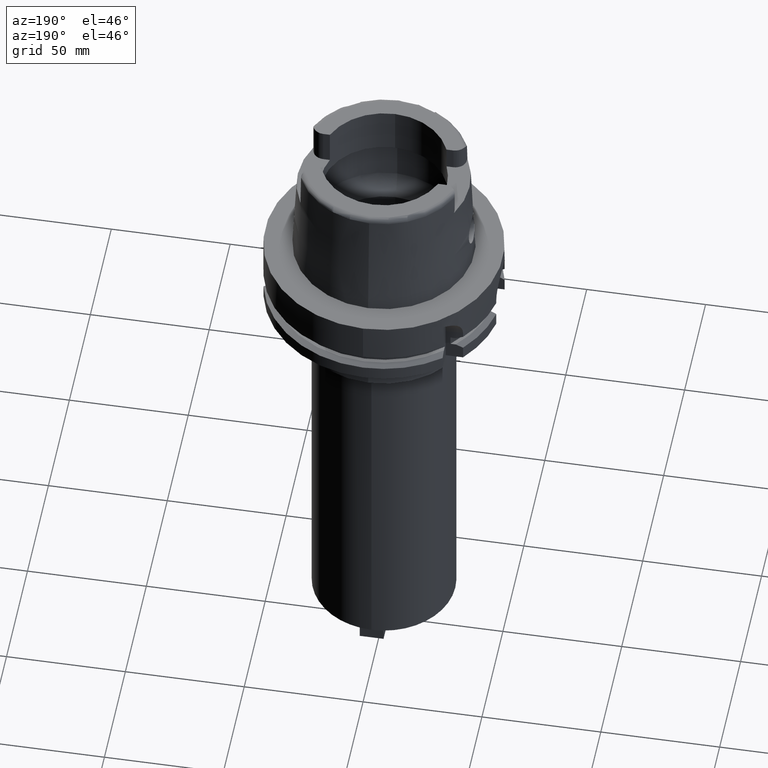
[diagram: clean part render]
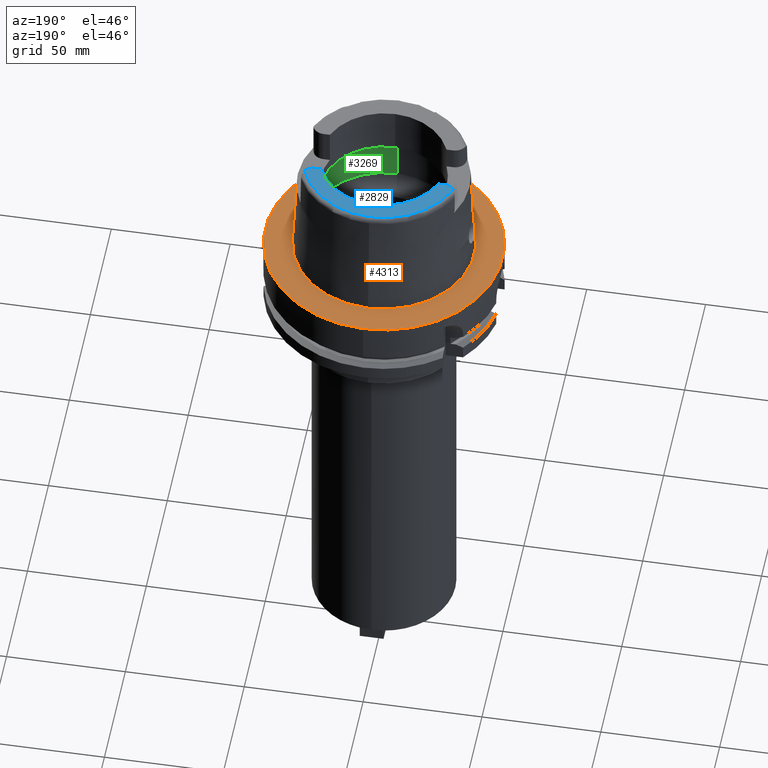
[diagram: same view with three faces highlighted in distinct colors, each labeled with its STEP entity id]
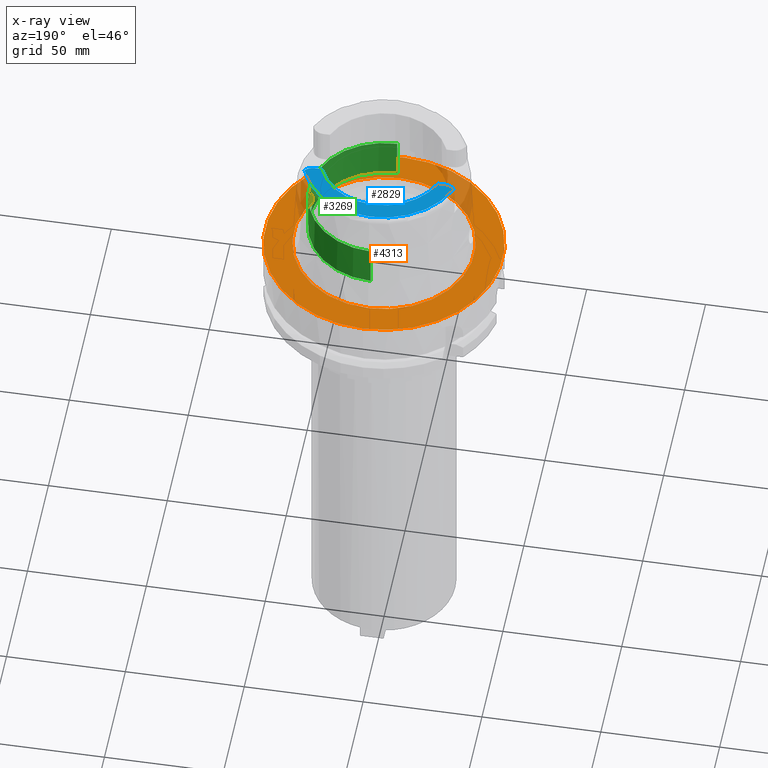
[diagram: x-ray of the same camera — body ghosted, the three highlighted faces saturated]
A machine part, auxiliary view with three faces highlighted in distinct colors.
The next image is the same camera in x-ray (body ghosted, the three faces saturated) — at least one of them is partly hidden behind the body in this view.
Their STEP definitions:

[orange] entity #4313 — the highlighted planar face has unit normal (0, 0, 1).
#2041=CARTESIAN_POINT('',(0.E0,0.E0,4.831690603169E-13));
#2042=DIRECTION('',(0.E0,0.E0,-1.E0));
#2043=DIRECTION('',(0.E0,-1.E0,0.E0));
#2044=AXIS2_PLACEMENT_3D('',#2041,#2042,#2043);
#2049=CARTESIAN_POINT('',(0.E0,0.E0,4.831690603169E-13));
#2050=DIRECTION('',(0.E0,0.E0,-1.E0));
#2051=DIRECTION('',(0.E0,1.E0,0.E0));
#2052=AXIS2_PLACEMENT_3D('',#2049,#2050,#2051);
#2057=CARTESIAN_POINT('',(0.E0,0.E0,1.023181539495E-12));
#2058=DIRECTION('',(0.E0,0.E0,1.E0));
#2059=DIRECTION('',(0.E0,-1.E0,0.E0));
#2060=AXIS2_PLACEMENT_3D('',#2057,#2058,#2059);
#2065=CARTESIAN_POINT('',(0.E0,0.E0,1.023181539495E-12));
#2066=DIRECTION('',(0.E0,0.E0,1.E0));
#2067=DIRECTION('',(0.E0,1.E0,0.E0));
#2068=AXIS2_PLACEMENT_3D('',#2065,#2066,#2067);
#2502=CARTESIAN_POINT('',(0.E0,-3.800001658252E1,6.039613253961E-13));
#2503=VERTEX_POINT('',#2502);
#2504=CARTESIAN_POINT('',(0.E0,3.800001658252E1,1.023181539495E-12));
#2505=VERTEX_POINT('',#2504);
#2771=CARTESIAN_POINT('',(0.E0,5.E1,3.031649005910E-13));
#2772=VERTEX_POINT('',#2771);
#2773=CARTESIAN_POINT('',(0.E0,-5.E1,4.831690603169E-13));
#2774=VERTEX_POINT('',#2773);
#4300=CARTESIAN_POINT('',(0.E0,0.E0,0.E0));
#4301=DIRECTION('',(0.E0,0.E0,1.E0));
#4302=DIRECTION('',(0.E0,1.E0,0.E0));
#4303=AXIS2_PLACEMENT_3D('',#4300,#4301,#4302);
#4304=PLANE('',#4303);
#4305=ORIENTED_EDGE('',*,*,#4065,.T.);
#4306=ORIENTED_EDGE('',*,*,#4174,.T.);
#4307=EDGE_LOOP('',(#4305,#4306));
#4308=FACE_OUTER_BOUND('',#4307,.F.);
#4309=ORIENTED_EDGE('',*,*,#3025,.T.);
#4310=ORIENTED_EDGE('',*,*,#2996,.T.);
#4311=EDGE_LOOP('',(#4309,#4310));
#4312=FACE_BOUND('',#4311,.F.);
#2045=CIRCLE('',#2044,5.E1);
#2053=CIRCLE('',#2052,5.E1);
#2061=CIRCLE('',#2060,3.800001658252E1);
#2069=CIRCLE('',#2068,3.800001658252E1);
#2996=EDGE_CURVE('',#2505,#2503,#2069,.T.);
#3025=EDGE_CURVE('',#2503,#2505,#2061,.T.);
#4065=EDGE_CURVE('',#2774,#2772,#2045,.T.);
#4174=EDGE_CURVE('',#2772,#2774,#2053,.T.);
#4313=ADVANCED_FACE('',(#4308,#4312),#4304,.T.);

[blue] entity #2829 — the highlighted planar face has unit normal (0, 0, 1).
#17=CARTESIAN_POINT('',(-2.737E1,1.489E1,5.E1));
#18=DIRECTION('',(0.E0,0.E0,-1.E0));
#19=DIRECTION('',(0.E0,-1.E0,0.E0));
#20=AXIS2_PLACEMENT_3D('',#17,#18,#19);
#26=CARTESIAN_POINT('',(0.E0,0.E0,5.E1));
#27=DIRECTION('',(0.E0,0.E0,-1.E0));
#28=DIRECTION('',(-9.332215253018E-1,3.593015233942E-1,0.E0));
#29=AXIS2_PLACEMENT_3D('',#26,#27,#28);
#34=CARTESIAN_POINT('',(2.737E1,1.489E1,5.E1));
#35=DIRECTION('',(0.E0,0.E0,-1.E0));
#36=DIRECTION('',(8.163632566569E-1,-5.775387720150E-1,0.E0));
#37=AXIS2_PLACEMENT_3D('',#34,#35,#36);
#42=CARTESIAN_POINT('',(0.E0,0.E0,5.E1));
#43=DIRECTION('',(0.E0,0.E0,1.E0));
#44=DIRECTION('',(9.259134021805E-1,3.777358490566E-1,0.E0));
#45=AXIS2_PLACEMENT_3D('',#42,#43,#44);
#50=CARTESIAN_POINT('',(0.E0,0.E0,5.E1));
#51=DIRECTION('',(0.E0,0.E0,1.E0));
#52=DIRECTION('',(0.E0,1.E0,0.E0));
#53=AXIS2_PLACEMENT_3D('',#50,#51,#52);
#72=DIRECTION('',(1.E0,1.429464217237E-13,0.E0));
#73=VECTOR('',#72,2.833294842218E0);
#74=CARTESIAN_POINT('',(-2.737E1,1.001E1,5.E1));
#75=LINE('',#74,#73);
#2353=DIRECTION('',(1.E0,-1.423194637337E-13,0.E0));
#2354=VECTOR('',#2353,2.833294842218E0);
#2355=CARTESIAN_POINT('',(2.453670515778E1,1.001E1,5.E1));
#2356=LINE('',#2355,#2354);
#2440=CARTESIAN_POINT('',(-2.737E1,1.001E1,5.E1));
#2441=CARTESIAN_POINT('',(-3.135385269249E1,1.207161079257E1,5.E1));
#2442=VERTEX_POINT('',#2440);
#2443=VERTEX_POINT('',#2441);
#2444=CARTESIAN_POINT('',(3.135385269249E1,1.207161079257E1,5.E1));
#2445=VERTEX_POINT('',#2444);
#2446=CARTESIAN_POINT('',(2.737E1,1.001E1,5.E1));
#2447=VERTEX_POINT('',#2446);
#2448=CARTESIAN_POINT('',(2.453670515778E1,1.001E1,5.E1));
#2449=VERTEX_POINT('',#2448);
#2450=CARTESIAN_POINT('',(0.E0,2.65E1,5.E1));
#2451=VERTEX_POINT('',#2450);
#2452=CARTESIAN_POINT('',(-2.453670515778E1,1.001E1,5.E1));
#2453=VERTEX_POINT('',#2452);
#2808=CARTESIAN_POINT('',(0.E0,0.E0,5.E1));
#2809=DIRECTION('',(0.E0,0.E0,1.E0));
#2810=DIRECTION('',(0.E0,1.E0,0.E0));
#2811=AXIS2_PLACEMENT_3D('',#2808,#2809,#2810);
#2812=PLANE('',#2811);
#2814=ORIENTED_EDGE('',*,*,#2813,.T.);
#2816=ORIENTED_EDGE('',*,*,#2815,.T.);
#2818=ORIENTED_EDGE('',*,*,#2817,.T.);
#2820=ORIENTED_EDGE('',*,*,#2819,.F.);
#2822=ORIENTED_EDGE('',*,*,#2821,.T.);
#2824=ORIENTED_EDGE('',*,*,#2823,.T.);
#2826=ORIENTED_EDGE('',*,*,#2825,.F.);
#2827=EDGE_LOOP('',(#2814,#2816,#2818,#2820,#2822,#2824,#2826));
#2828=FACE_OUTER_BOUND('',#2827,.F.);
#21=CIRCLE('',#20,4.88E0);
#30=CIRCLE('',#29,3.359743838136E1);
#38=CIRCLE('',#37,4.88E0);
#46=CIRCLE('',#45,2.65E1);
#54=CIRCLE('',#53,2.65E1);
#2813=EDGE_CURVE('',#2442,#2443,#21,.T.);
#2815=EDGE_CURVE('',#2443,#2445,#30,.T.);
#2817=EDGE_CURVE('',#2445,#2447,#38,.T.);
#2819=EDGE_CURVE('',#2449,#2447,#2356,.T.);
#2821=EDGE_CURVE('',#2449,#2451,#46,.T.);
#2823=EDGE_CURVE('',#2451,#2453,#54,.T.);
#2825=EDGE_CURVE('',#2442,#2453,#75,.T.);
#2829=ADVANCED_FACE('',(#2828),#2812,.T.);

[green] entity #3269 — the highlighted cylindrical surface (partial cylindrical patch) has radius 31.5 mm, axis along (0, 0, 1).
#534=CARTESIAN_POINT('',(0.E0,0.E0,2.711662432703E1));
#535=DIRECTION('',(0.E0,0.E0,1.E0));
#536=DIRECTION('',(0.E0,-1.E0,0.E0));
#537=AXIS2_PLACEMENT_3D('',#534,#535,#536);
#582=DIRECTION('',(0.E0,5.000414258470E-14,1.E0));
#583=VECTOR('',#582,1.762E1);
#584=CARTESIAN_POINT('',(0.E0,-3.15E1,9.496624327026E0));
#585=LINE('',#584,#583);
#682=CARTESIAN_POINT('',(0.E0,0.E0,9.496624327026E0));
#683=DIRECTION('',(0.E0,0.E0,-1.E0));
#684=DIRECTION('',(9.971171061384E-1,-7.587803796965E-2,0.E0));
#685=AXIS2_PLACEMENT_3D('',#682,#683,#684);
#706=CARTESIAN_POINT('',(0.E0,0.E0,9.496624327026E0));
#707=DIRECTION('',(0.E0,0.E0,-1.E0));
#708=DIRECTION('',(0.E0,1.E0,0.E0));
#709=AXIS2_PLACEMENT_3D('',#706,#707,#708);
#731=CARTESIAN_POINT('',(3.140918884336E1,-2.390158196044E0,9.496624327026E0));
#732=CARTESIAN_POINT('',(3.136994813364E1,-2.905822332357E0,9.720581210047E0));
#733=CARTESIAN_POINT('',(3.127457905672E1,-3.833750490583E0,1.028801637318E1));
#734=CARTESIAN_POINT('',(3.110936834371E1,-4.977047791145E0,1.151377122301E1));
#735=CARTESIAN_POINT('',(3.097607711511E1,-5.729099832596E0,1.298184817398E1));
#736=CARTESIAN_POINT('',(3.091126142545E1,-6.061189444425E0,1.459712981848E1));
#737=CARTESIAN_POINT('',(3.093402224896E1,-5.946723392598E0,1.623980758094E1));
#738=CARTESIAN_POINT('',(3.103820285493E1,-5.392168183179E0,1.780058899295E1));
#739=CARTESIAN_POINT('',(3.119433825248E1,-4.427130194291E0,1.916132218788E1));
#740=CARTESIAN_POINT('',(3.135439655152E1,-3.136858799710E0,2.020349005972E1));
#741=CARTESIAN_POINT('',(3.147165624241E1,-1.614858231795E0,2.085381037818E1));
#742=CARTESIAN_POINT('',(3.15E1,-5.517545258805E-1,2.1E1));
#743=CARTESIAN_POINT('',(3.15E1,0.E0,2.1E1));
#748=CARTESIAN_POINT('',(3.15E1,0.E0,2.1E1));
#749=CARTESIAN_POINT('',(3.15E1,5.556466192320E-1,2.1E1));
#750=CARTESIAN_POINT('',(3.147125579866E1,1.625009170397E0,2.085177074407E1));
#751=CARTESIAN_POINT('',(3.135290495454E1,3.152112798037E0,2.019488345507E1));
#752=CARTESIAN_POINT('',(3.119215802335E1,4.442238319011E0,1.914560258892E1));
#753=CARTESIAN_POINT('',(3.103625200138E1,5.403105293089E0,1.777954630171E1));
#754=CARTESIAN_POINT('',(3.093312144149E1,5.951277547158E0,1.621713017368E1));
#755=CARTESIAN_POINT('',(3.091160407577E1,6.059484372707E0,1.457613905793E1));
#756=CARTESIAN_POINT('',(3.097722916938E1,5.722986961273E0,1.296572140988E1));
#757=CARTESIAN_POINT('',(3.111058680173E1,4.969405675145E0,1.150375305321E1));
#758=CARTESIAN_POINT('',(3.127519646746E1,3.828318161343E0,1.028431487239E1));
#759=CARTESIAN_POINT('',(3.137011574467E1,2.903619747445E0,9.719624610554E0));
#760=CARTESIAN_POINT('',(3.140918884336E1,2.390158196044E0,9.496624327026E0));
#765=DIRECTION('',(0.E0,-5.000414258470E-14,1.E0));
#766=VECTOR('',#765,1.762E1);
#767=CARTESIAN_POINT('',(0.E0,3.15E1,9.496624327026E0));
#768=LINE('',#767,#766);
#2526=CARTESIAN_POINT('',(0.E0,3.15E1,2.711662432703E1));
#2527=VERTEX_POINT('',#2526);
#2528=CARTESIAN_POINT('',(0.E0,-3.15E1,2.711662432703E1));
#2529=VERTEX_POINT('',#2528);
#2532=CARTESIAN_POINT('',(0.E0,-3.15E1,9.496624327026E0));
#2533=VERTEX_POINT('',#2532);
#2534=CARTESIAN_POINT('',(0.E0,3.15E1,9.496624327026E0));
#2535=VERTEX_POINT('',#2534);
#2540=VERTEX_POINT('',#731);
#2541=VERTEX_POINT('',#743);
#2543=VERTEX_POINT('',#760);
#3254=CARTESIAN_POINT('',(0.E0,0.E0,-2.314E2));
#3255=DIRECTION('',(0.E0,0.E0,1.E0));
#3256=DIRECTION('',(0.E0,1.E0,0.E0));
#3257=AXIS2_PLACEMENT_3D('',#3254,#3255,#3256);
#3258=CYLINDRICAL_SURFACE('',#3257,3.15E1);
#3259=ORIENTED_EDGE('',*,*,#3243,.T.);
#3261=ORIENTED_EDGE('',*,*,#3260,.T.);
#3262=ORIENTED_EDGE('',*,*,#3231,.F.);
#3263=ORIENTED_EDGE('',*,*,#3161,.T.);
#3264=ORIENTED_EDGE('',*,*,#3131,.F.);
#3265=ORIENTED_EDGE('',*,*,#3158,.F.);
#3266=ORIENTED_EDGE('',*,*,#3225,.F.);
#3267=EDGE_LOOP('',(#3259,#3261,#3262,#3263,#3264,#3265,#3266));
#3268=FACE_OUTER_BOUND('',#3267,.F.);
#538=CIRCLE('',#537,3.15E1);
#686=CIRCLE('',#685,3.15E1);
#710=CIRCLE('',#709,3.15E1);
#744=B_SPLINE_CURVE_WITH_KNOTS('',3,(#731,#732,#733,#734,#735,#736,#737,#738,
#739,#740,#741,#742,#743),.UNSPECIFIED.,.F.,.F.,(4,1,1,1,1,1,1,1,1,1,4),(0.E0,
1.E-1,2.E-1,3.E-1,4.E-1,5.E-1,6.E-1,7.E-1,8.E-1,9.E-1,1.E0),.UNSPECIFIED.);
#761=B_SPLINE_CURVE_WITH_KNOTS('',3,(#748,#749,#750,#751,#752,#753,#754,#755,
#756,#757,#758,#759,#760),.UNSPECIFIED.,.F.,.F.,(4,1,1,1,1,1,1,1,1,1,4),(0.E0,
1.E-1,2.E-1,3.E-1,4.E-1,5.E-1,6.E-1,7.E-1,8.E-1,9.E-1,1.E0),.UNSPECIFIED.);
#3131=EDGE_CURVE('',#2529,#2527,#538,.T.);
#3158=EDGE_CURVE('',#2533,#2529,#585,.T.);
#3161=EDGE_CURVE('',#2535,#2527,#768,.T.);
#3225=EDGE_CURVE('',#2540,#2533,#686,.T.);
#3231=EDGE_CURVE('',#2535,#2543,#710,.T.);
#3243=EDGE_CURVE('',#2540,#2541,#744,.T.);
#3260=EDGE_CURVE('',#2541,#2543,#761,.T.);
#3269=ADVANCED_FACE('',(#3268),#3258,.F.);